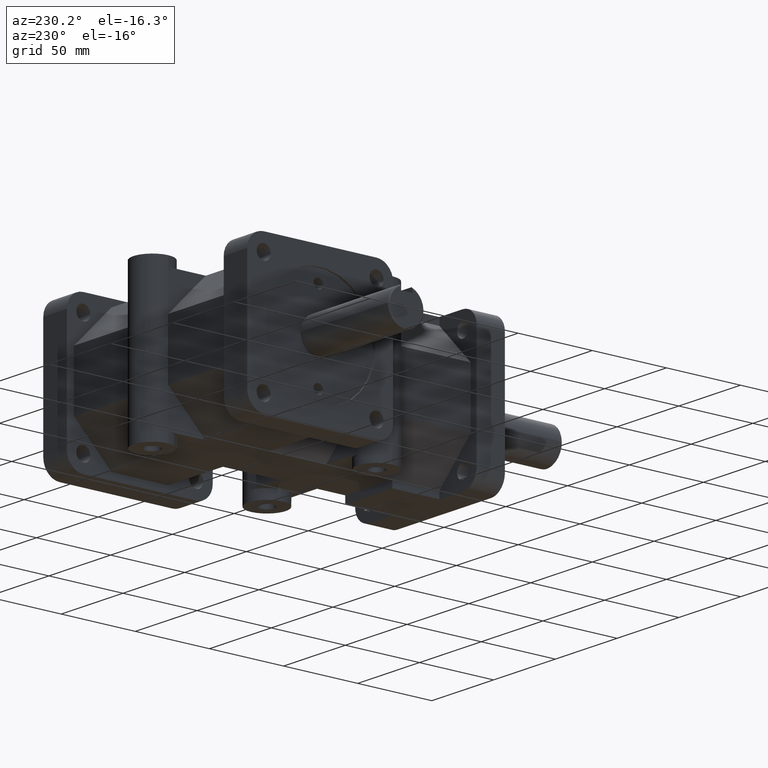
[diagram: clean part render]
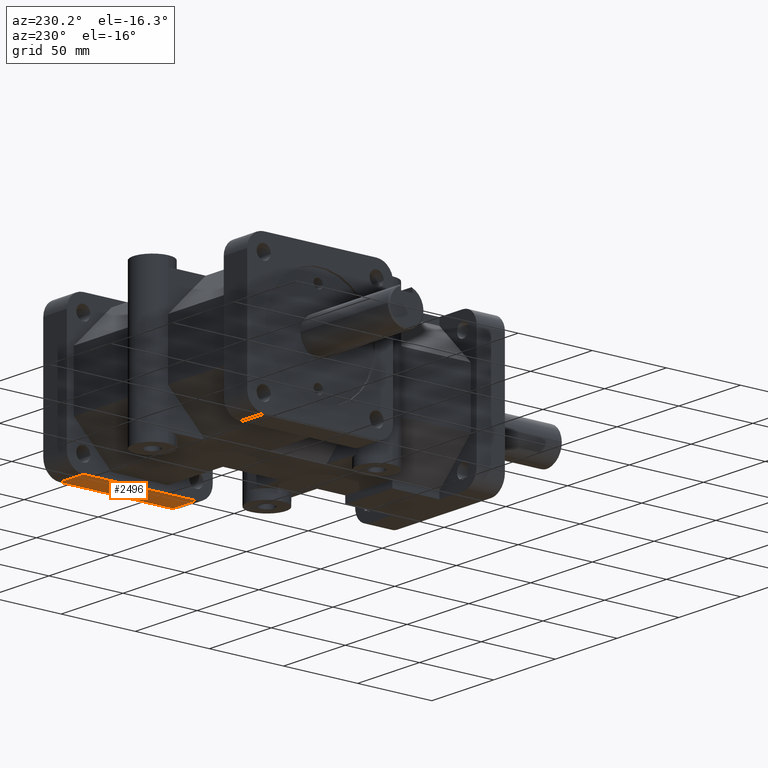
[diagram: same view with one face highlighted and labeled with its STEP entity id]
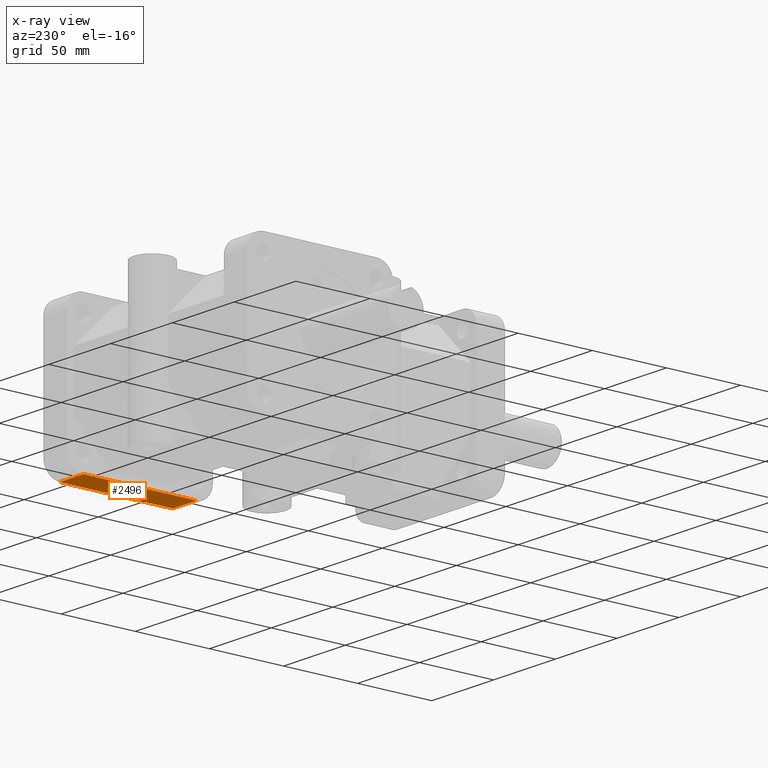
[diagram: x-ray of the same camera — body ghosted, the highlighted face saturated]
A machine part, auxiliary view. The second image highlights one B-rep face of the part: STEP entity #2496.
The next image is the same camera in x-ray: the body ghosted, the highlighted face saturated — about 0% of this face is hidden behind the body in this view.
In plain terms, the highlighted planar face has unit normal (0, 0, 1).
Its self-contained STEP definition (entity closure, byte-faithful):
#266=FACE_OUTER_BOUND('',#424,.T.);
#424=EDGE_LOOP('',(#1875,#1876,#1877,#1878));
#623=LINE('',#3849,#873);
#625=LINE('',#3858,#875);
#645=LINE('',#3936,#895);
#652=LINE('',#3955,#902);
#873=VECTOR('',#3083,1.);
#875=VECTOR('',#3091,1.);
#895=VECTOR('',#3163,1.);
#902=VECTOR('',#3180,1.);
#1137=VERTEX_POINT('',#3842);
#1140=VERTEX_POINT('',#3847);
#1141=VERTEX_POINT('',#3851);
#1144=VERTEX_POINT('',#3856);
#1394=EDGE_CURVE('',#1140,#1137,#623,.T.);
#1398=EDGE_CURVE('',#1144,#1141,#625,.T.);
#1434=EDGE_CURVE('',#1137,#1144,#645,.T.);
#1445=EDGE_CURVE('',#1141,#1140,#652,.T.);
#1875=ORIENTED_EDGE('',*,*,#1394,.F.);
#1876=ORIENTED_EDGE('',*,*,#1445,.F.);
#1877=ORIENTED_EDGE('',*,*,#1398,.F.);
#1878=ORIENTED_EDGE('',*,*,#1434,.F.);
#2372=PLANE('',#2715);
#2496=ADVANCED_FACE('',(#266),#2372,.F.);
#2715=AXIS2_PLACEMENT_3D('',#3954,#3178,#3179);
#3083=DIRECTION('',(-1.,0.,0.));
#3091=DIRECTION('',(1.,0.,0.));
#3163=DIRECTION('',(0.,-1.,0.));
#3178=DIRECTION('center_axis',(0.,0.,1.));
#3179=DIRECTION('ref_axis',(-1.,0.,0.));
#3180=DIRECTION('',(0.,1.,0.));
#3842=CARTESIAN_POINT('',(63.5,190.4365,-49.2125));
#3847=CARTESIAN_POINT('',(82.55,190.4365,-49.2125));
#3849=CARTESIAN_POINT('',(77.7875,190.4365,-49.2125));
#3851=CARTESIAN_POINT('',(82.55,114.3635,-49.2125));
#3856=CARTESIAN_POINT('',(63.5,114.3635,-49.2125));
#3858=CARTESIAN_POINT('',(68.2625,114.3635,-49.2125));
#3936=CARTESIAN_POINT('',(63.5,196.85,-49.2125));
#3954=CARTESIAN_POINT('Origin',(73.025,152.4,-49.2125));
#3955=CARTESIAN_POINT('',(82.55,103.1875,-49.2125));